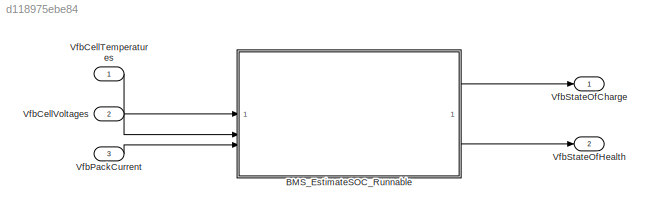
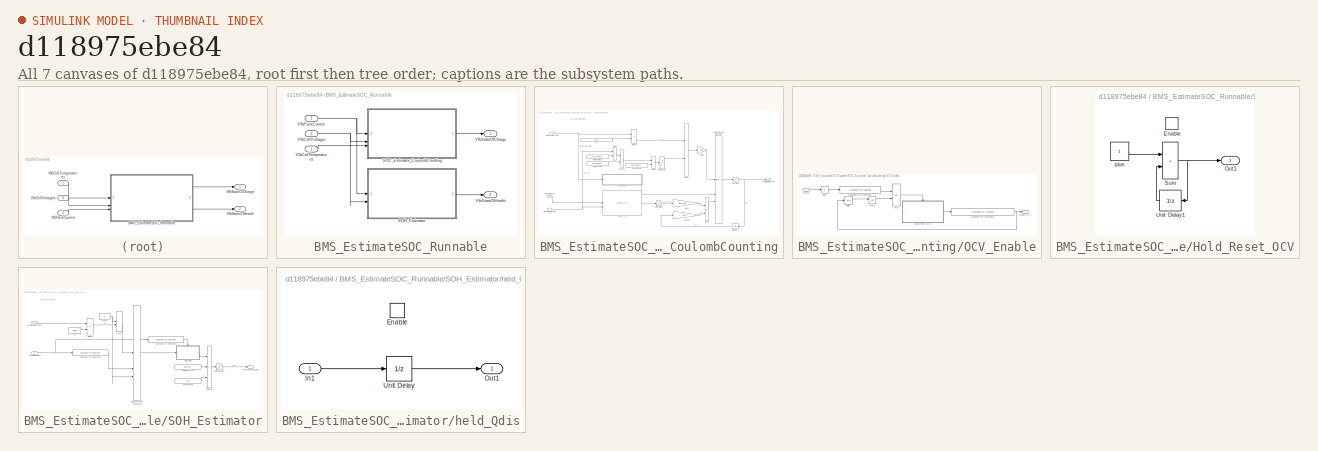
[diagram: thumbnail index - all 7 canvases of the model, root first then tree order]
MODEL slx_d118975ebe84
KIND model
CONFIG AbsTol = auto
CONFIG EnableMultiTasking = on
CONFIG FixedStep = auto
CONFIG MaxStep = auto
CONFIG MinStep = auto
CONFIG RelTol = 1e-3
CONFIG SampleTimeConstraint = Unconstrained
CONFIG SolverName = FixedStepDiscrete
CONFIG StartTime = 0.0
CONFIG StopTime = 10.0
WORKSPACE source: external: MAT-File  (data not in archive)
BLOCK [SubSystem] BMS_EstimateSOC_Runnable
  FunctionInterfaceSpec = Allow arguments (Optimized)
  PartitionName = BMS_EstimateSOC_Task
  Priority = 3
  RTWFcnNameOpts = Use subsystem name
  RTWSystemCode = Nonreusable function
  ScheduleAs = Periodic partition
  SystemSampleTime = Schedule.BMS_EstimateSOC_Task
  Tag = BMS_EstimateSOC_Task
  TreatAsAtomicUnit = on
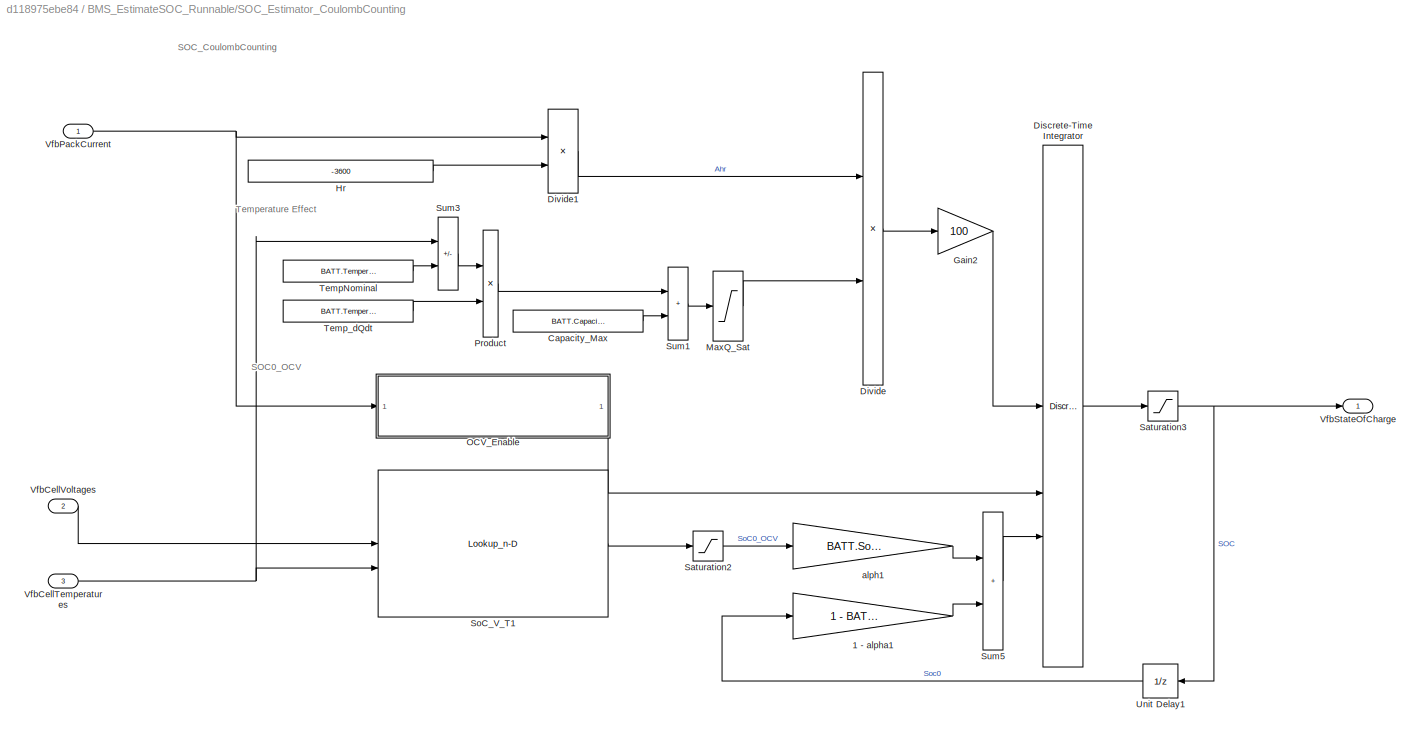
BLOCK [SubSystem] BMS_EstimateSOC_Runnable/SOC_Estimator_CoulombCounting
  FunctionInterfaceSpec = Allow arguments (Optimized)
  RTWSystemCode = Nonreusable function
  TreatAsAtomicUnit = on
BLOCK [Gain] BMS_EstimateSOC_Runnable/SOC_Estimator_CoulombCounting/1 - alpha1
  Gain = 1 - BATT.SoC.alpha
BLOCK [Constant] BMS_EstimateSOC_Runnable/SOC_Estimator_CoulombCounting/Capacity_Max
  Value = BATT.Capacity.Max
BLOCK [DiscreteIntegrator] BMS_EstimateSOC_Runnable/SOC_Estimator_CoulombCounting/Discrete-Time Integrator
  ExternalReset = rising
  ICPrevOutput = DiscIntNeverNeededParam
  ICPrevScaledInput = DiscIntNeverNeededParam
  InitialCondition = BATT.SOC.SoC0
  InitialConditionSource = external
  SampleTime = -1
BLOCK [Product] BMS_EstimateSOC_Runnable/SOC_Estimator_CoulombCounting/Divide
  Inputs = */
  NameLocation = top
  OutDataTypeStr = single
BLOCK [Product] BMS_EstimateSOC_Runnable/SOC_Estimator_CoulombCounting/Divide1
  Inputs = */
BLOCK [Gain] BMS_EstimateSOC_Runnable/SOC_Estimator_CoulombCounting/Gain2
  Gain = 100
  OutDataTypeStr = single
BLOCK [Constant] BMS_EstimateSOC_Runnable/SOC_Estimator_CoulombCounting/Hr
  OutDataTypeStr = single
  Value = -3600
BLOCK [Saturate] BMS_EstimateSOC_Runnable/SOC_Estimator_CoulombCounting/MaxQ_Sat
  LowerLimit = 0
  UpperLimit = BATT.Capacity.Max
BLOCK [SubSystem] BMS_EstimateSOC_Runnable/SOC_Estimator_CoulombCounting/OCV_Enable
BLOCK [Logic] BMS_EstimateSOC_Runnable/SOC_Estimator_CoulombCounting/OCV_Enable/AND
  AllPortsSameDT = off
  OutDataTypeStr = boolean
BLOCK [Abs] BMS_EstimateSOC_Runnable/SOC_Estimator_CoulombCounting/OCV_Enable/Abs1
  SaturateOnIntegerOverflow = off
BLOCK [Reference] BMS_EstimateSOC_Runnable/SOC_Estimator_CoulombCounting/OCV_Enable/Compare To Constant1  REF=simulink/Logic and Bit
Operations/Compare
To Constant
  SourceBlock = simulink/Logic and Bit\nOperations/Compare\nTo Constant
  SourceType = Compare To Constant
BLOCK [Reference] BMS_EstimateSOC_Runnable/SOC_Estimator_CoulombCounting/OCV_Enable/Compare To Constant2  REF=simulink/Logic and Bit
Operations/Compare
To Constant
  SourceBlock = simulink/Logic and Bit\nOperations/Compare\nTo Constant
  SourceType = Compare To Constant
BLOCK [SubSystem] BMS_EstimateSOC_Runnable/SOC_Estimator_CoulombCounting/OCV_Enable/Hold_Reset_OCV
BLOCK [EnablePort] BMS_EstimateSOC_Runnable/SOC_Estimator_CoulombCounting/OCV_Enable/Hold_Reset_OCV/Enable
  StatesWhenEnabling = reset
BLOCK [Outport] BMS_EstimateSOC_Runnable/SOC_Estimator_CoulombCounting/OCV_Enable/Hold_Reset_OCV/Out1
  InitialOutput = 0
  OutputWhenDisabled = reset
BLOCK [Sum] BMS_EstimateSOC_Runnable/SOC_Estimator_CoulombCounting/OCV_Enable/Hold_Reset_OCV/Sum
  IconShape = rectangular
BLOCK [UnitDelay] BMS_EstimateSOC_Runnable/SOC_Estimator_CoulombCounting/OCV_Enable/Hold_Reset_OCV/Unit Delay1
  HasFrameUpgradeWarning = on
  SampleTime = -1
BLOCK [Constant] BMS_EstimateSOC_Runnable/SOC_Estimator_CoulombCounting/OCV_Enable/Hold_Reset_OCV/plus
BLOCK [Inport] BMS_EstimateSOC_Runnable/SOC_Estimator_CoulombCounting/OCV_Enable/InCurr
BLOCK [Logic] BMS_EstimateSOC_Runnable/SOC_Estimator_CoulombCounting/OCV_Enable/NOT
  AllPortsSameDT = off
  Operator = NOT
  OutDataTypeStr = boolean
BLOCK [Outport] BMS_EstimateSOC_Runnable/SOC_Estimator_CoulombCounting/OCV_Enable/Reset_OCV
BLOCK [UnitDelay] BMS_EstimateSOC_Runnable/SOC_Estimator_CoulombCounting/OCV_Enable/delay
  HasFrameUpgradeWarning = on
  SampleTime = -1
BLOCK [Product] BMS_EstimateSOC_Runnable/SOC_Estimator_CoulombCounting/Product
BLOCK [Saturate] BMS_EstimateSOC_Runnable/SOC_Estimator_CoulombCounting/Saturation2
  LowerLimit = BATT.SoC.min
  OutDataTypeStr = single
  UpperLimit = BATT.SoC.max
BLOCK [Saturate] BMS_EstimateSOC_Runnable/SOC_Estimator_CoulombCounting/Saturation3
  LowerLimit = BATT.SoC.min
  OutDataTypeStr = single
  UpperLimit = BATT.SoC.max
BLOCK [Lookup_n-D] BMS_EstimateSOC_Runnable/SOC_Estimator_CoulombCounting/SoC_V_T1
  BreakpointsForDimension1 = BATT.Voltage.V_LUT
  BreakpointsForDimension2 = BATT.Temperature.T_LUT
  InputPortMap = u0,u1
  InternalRulePriority = Speed
  RndMeth = Simplest
  Table = BATT.SoC.TableData
BLOCK [Sum] BMS_EstimateSOC_Runnable/SOC_Estimator_CoulombCounting/Sum1
  IconShape = rectangular
BLOCK [Sum] BMS_EstimateSOC_Runnable/SOC_Estimator_CoulombCounting/Sum3
  IconShape = rectangular
  Inputs = +-
BLOCK [Sum] BMS_EstimateSOC_Runnable/SOC_Estimator_CoulombCounting/Sum5
  IconShape = rectangular
BLOCK [Constant] BMS_EstimateSOC_Runnable/SOC_Estimator_CoulombCounting/TempNominal
  Value = BATT.Temperature.Nominal
BLOCK [Constant] BMS_EstimateSOC_Runnable/SOC_Estimator_CoulombCounting/Temp_dQdt
  Value = BATT.Temperature.dQ_dt
BLOCK [UnitDelay] BMS_EstimateSOC_Runnable/SOC_Estimator_CoulombCounting/Unit Delay1
  HasFrameUpgradeWarning = on
  InitialCondition = BATT.SoC.SoC0 * ones(BATT.Package.Ns_Module, BATT.Package.NumModules)
  SampleTime = -1
BLOCK [Inport] BMS_EstimateSOC_Runnable/SOC_Estimator_CoulombCounting/VfbCellTemperatures
  Port = 3
BLOCK [Inport] BMS_EstimateSOC_Runnable/SOC_Estimator_CoulombCounting/VfbCellVoltages
  Port = 2
  PortDimensions = BATT.Package.NumModules
BLOCK [Inport] BMS_EstimateSOC_Runnable/SOC_Estimator_CoulombCounting/VfbPackCurrent
BLOCK [Outport] BMS_EstimateSOC_Runnable/SOC_Estimator_CoulombCounting/VfbStateOfCharge
BLOCK [Gain] BMS_EstimateSOC_Runnable/SOC_Estimator_CoulombCounting/alph1
  Gain = BATT.SoC.alpha
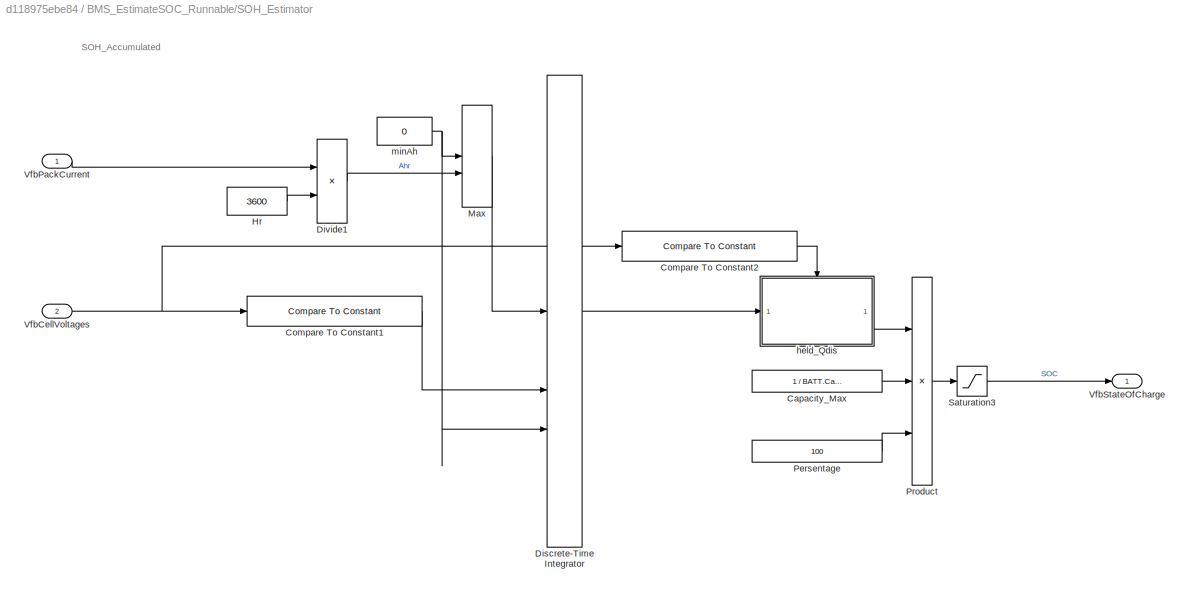
BLOCK [SubSystem] BMS_EstimateSOC_Runnable/SOH_Estimator
  FunctionInterfaceSpec = Allow arguments (Optimized)
  RTWSystemCode = Nonreusable function
  TreatAsAtomicUnit = on
BLOCK [Constant] BMS_EstimateSOC_Runnable/SOH_Estimator/Capacity_Max
  Value = 1 / BATT.Capacity.Max
BLOCK [Reference] BMS_EstimateSOC_Runnable/SOH_Estimator/Compare To Constant1  REF=simulink/Logic and Bit
Operations/Compare
To Constant
  SourceBlock = simulink/Logic and Bit\nOperations/Compare\nTo Constant
  SourceType = Compare To Constant
BLOCK [Reference] BMS_EstimateSOC_Runnable/SOH_Estimator/Compare To Constant2  REF=simulink/Logic and Bit
Operations/Compare
To Constant
  SourceBlock = simulink/Logic and Bit\nOperations/Compare\nTo Constant
  SourceType = Compare To Constant
BLOCK [DiscreteIntegrator] BMS_EstimateSOC_Runnable/SOH_Estimator/Discrete-Time Integrator
  ExternalReset = rising
  ICPrevOutput = DiscIntNeverNeededParam
  ICPrevScaledInput = DiscIntNeverNeededParam
  InitialCondition = BATT.SOC.SoC0
  InitialConditionSource = external
  SampleTime = -1
BLOCK [Product] BMS_EstimateSOC_Runnable/SOH_Estimator/Divide1
  Inputs = */
BLOCK [Constant] BMS_EstimateSOC_Runnable/SOH_Estimator/Hr
  OutDataTypeStr = single
  Value = 3600
BLOCK [MinMax] BMS_EstimateSOC_Runnable/SOH_Estimator/Max
  Function = max
  Inputs = 2
BLOCK [Constant] BMS_EstimateSOC_Runnable/SOH_Estimator/Persentage
  Value = 100
BLOCK [Product] BMS_EstimateSOC_Runnable/SOH_Estimator/Product
  Inputs = 3
BLOCK [Saturate] BMS_EstimateSOC_Runnable/SOH_Estimator/Saturation3
  LowerLimit = BATT.SoC.min
  OutDataTypeStr = single
  UpperLimit = BATT.SoC.max
BLOCK [Inport] BMS_EstimateSOC_Runnable/SOH_Estimator/VfbCellVoltages
  Port = 2
  PortDimensions = BATT.Package.NumModules
BLOCK [Inport] BMS_EstimateSOC_Runnable/SOH_Estimator/VfbPackCurrent
BLOCK [Outport] BMS_EstimateSOC_Runnable/SOH_Estimator/VfbStateOfCharge
BLOCK [SubSystem] BMS_EstimateSOC_Runnable/SOH_Estimator/held_Qdis
  TreatAsAtomicUnit = on
BLOCK [EnablePort] BMS_EstimateSOC_Runnable/SOH_Estimator/held_Qdis/Enable
BLOCK [Inport] BMS_EstimateSOC_Runnable/SOH_Estimator/held_Qdis/In1
BLOCK [Outport] BMS_EstimateSOC_Runnable/SOH_Estimator/held_Qdis/Out1
BLOCK [UnitDelay] BMS_EstimateSOC_Runnable/SOH_Estimator/held_Qdis/Unit Delay
  HasFrameUpgradeWarning = on
  InitialCondition = BATT.Capacity.Max
  SampleTime = -1
BLOCK [Constant] BMS_EstimateSOC_Runnable/SOH_Estimator/minAh
  OutDataTypeStr = single
  Value = 0
BLOCK [Inport] BMS_EstimateSOC_Runnable/VfbCellTemperatures
  PortDimensions = BATT.Package.NumModules
BLOCK [Inport] BMS_EstimateSOC_Runnable/VfbCellVoltages
  Port = 2
  PortDimensions = BATT.Package.NumModules
BLOCK [Inport] BMS_EstimateSOC_Runnable/VfbPackCurrent
  Port = 3
BLOCK [Outport] BMS_EstimateSOC_Runnable/VfbStateOfCharge
BLOCK [Outport] BMS_EstimateSOC_Runnable/VfbStateOfHealth
  Port = 2
BLOCK [Inport] VfbCellTemperatures
  OutDataTypeStr = single
  Unit = °C
BLOCK [Inport] VfbCellVoltages
  OutDataTypeStr = single
  Port = 2
  Unit = V
BLOCK [Inport] VfbPackCurrent
  OutDataTypeStr = single
  Port = 3
  PortDimensions = 1
  Unit = A
BLOCK [Outport] VfbStateOfCharge
  OutDataTypeStr = single
BLOCK [Outport] VfbStateOfHealth
  OutDataTypeStr = single
  Port = 2
ANNOTATION BMS_EstimateSOC_Runnable/SOC_Estimator_CoulombCounting: SOC0_OCV
ANNOTATION BMS_EstimateSOC_Runnable/SOC_Estimator_CoulombCounting: SOC_CoulombCounting
ANNOTATION BMS_EstimateSOC_Runnable/SOC_Estimator_CoulombCounting: Temperature Effect
ANNOTATION BMS_EstimateSOC_Runnable/SOH_Estimator: SOH_Accumulated
LINE BMS_EstimateSOC_Runnable/SOC_Estimator_CoulombCounting/1 - alpha1:1 -> BMS_EstimateSOC_Runnable/SOC_Estimator_CoulombCounting/Sum5:2
LINE BMS_EstimateSOC_Runnable/SOC_Estimator_CoulombCounting/Capacity_Max:1 -> BMS_EstimateSOC_Runnable/SOC_Estimator_CoulombCounting/Sum1:2
LINE BMS_EstimateSOC_Runnable/SOC_Estimator_CoulombCounting/Discrete-Time Integrator:1 -> BMS_EstimateSOC_Runnable/SOC_Estimator_CoulombCounting/Saturation3:1
LINE BMS_EstimateSOC_Runnable/SOC_Estimator_CoulombCounting/Divide1:1 -> BMS_EstimateSOC_Runnable/SOC_Estimator_CoulombCounting/Divide:1
LINE BMS_EstimateSOC_Runnable/SOC_Estimator_CoulombCounting/Divide:1 -> BMS_EstimateSOC_Runnable/SOC_Estimator_CoulombCounting/Gain2:1
LINE BMS_EstimateSOC_Runnable/SOC_Estimator_CoulombCounting/Gain2:1 -> BMS_EstimateSOC_Runnable/SOC_Estimator_CoulombCounting/Discrete-Time Integrator:1
LINE BMS_EstimateSOC_Runnable/SOC_Estimator_CoulombCounting/Hr:1 -> BMS_EstimateSOC_Runnable/SOC_Estimator_CoulombCounting/Divide1:2
LINE BMS_EstimateSOC_Runnable/SOC_Estimator_CoulombCounting/MaxQ_Sat:1 -> BMS_EstimateSOC_Runnable/SOC_Estimator_CoulombCounting/Divide:2
LINE BMS_EstimateSOC_Runnable/SOC_Estimator_CoulombCounting/OCV_Enable/AND:1 -> BMS_EstimateSOC_Runnable/SOC_Estimator_CoulombCounting/OCV_Enable/Hold_Reset_OCV:enable
LINE BMS_EstimateSOC_Runnable/SOC_Estimator_CoulombCounting/OCV_Enable/Abs1:1 -> BMS_EstimateSOC_Runnable/SOC_Estimator_CoulombCounting/OCV_Enable/Compare To Constant1:1
LINE BMS_EstimateSOC_Runnable/SOC_Estimator_CoulombCounting/OCV_Enable/Compare To Constant1:1 -> BMS_EstimateSOC_Runnable/SOC_Estimator_CoulombCounting/OCV_Enable/AND:1
NET BMS_EstimateSOC_Runnable/SOC_Estimator_CoulombCounting/OCV_Enable/Compare To Constant2:1 -> BMS_EstimateSOC_Runnable/SOC_Estimator_CoulombCounting/OCV_Enable/Reset_OCV:1, BMS_EstimateSOC_Runnable/SOC_Estimator_CoulombCounting/OCV_Enable/delay:1
NET BMS_EstimateSOC_Runnable/SOC_Estimator_CoulombCounting/OCV_Enable/Hold_Reset_OCV/Sum:1 -> BMS_EstimateSOC_Runnable/SOC_Estimator_CoulombCounting/OCV_Enable/Hold_Reset_OCV/Out1:1, BMS_EstimateSOC_Runnable/SOC_Estimator_CoulombCounting/OCV_Enable/Hold_Reset_OCV/Unit Delay1:1
LINE BMS_EstimateSOC_Runnable/SOC_Estimator_CoulombCounting/OCV_Enable/Hold_Reset_OCV/Unit Delay1:1 -> BMS_EstimateSOC_Runnable/SOC_Estimator_CoulombCounting/OCV_Enable/Hold_Reset_OCV/Sum:2
LINE BMS_EstimateSOC_Runnable/SOC_Estimator_CoulombCounting/OCV_Enable/Hold_Reset_OCV/plus:1 -> BMS_EstimateSOC_Runnable/SOC_Estimator_CoulombCounting/OCV_Enable/Hold_Reset_OCV/Sum:1
LINE BMS_EstimateSOC_Runnable/SOC_Estimator_CoulombCounting/OCV_Enable/Hold_Reset_OCV:1 -> BMS_EstimateSOC_Runnable/SOC_Estimator_CoulombCounting/OCV_Enable/Compare To Constant2:1
LINE BMS_EstimateSOC_Runnable/SOC_Estimator_CoulombCounting/OCV_Enable/InCurr:1 -> BMS_EstimateSOC_Runnable/SOC_Estimator_CoulombCounting/OCV_Enable/Abs1:1
LINE BMS_EstimateSOC_Runnable/SOC_Estimator_CoulombCounting/OCV_Enable/NOT:1 -> BMS_EstimateSOC_Runnable/SOC_Estimator_CoulombCounting/OCV_Enable/AND:2
LINE BMS_EstimateSOC_Runnable/SOC_Estimator_CoulombCounting/OCV_Enable/delay:1 -> BMS_EstimateSOC_Runnable/SOC_Estimator_CoulombCounting/OCV_Enable/NOT:1
LINE BMS_EstimateSOC_Runnable/SOC_Estimator_CoulombCounting/OCV_Enable:1 -> BMS_EstimateSOC_Runnable/SOC_Estimator_CoulombCounting/Discrete-Time Integrator:2
LINE BMS_EstimateSOC_Runnable/SOC_Estimator_CoulombCounting/Product:1 -> BMS_EstimateSOC_Runnable/SOC_Estimator_CoulombCounting/Sum1:1
LINE BMS_EstimateSOC_Runnable/SOC_Estimator_CoulombCounting/Saturation2:1 -> BMS_EstimateSOC_Runnable/SOC_Estimator_CoulombCounting/alph1:1
NET BMS_EstimateSOC_Runnable/SOC_Estimator_CoulombCounting/Saturation3:1 -> BMS_EstimateSOC_Runnable/SOC_Estimator_CoulombCounting/Unit Delay1:1, BMS_EstimateSOC_Runnable/SOC_Estimator_CoulombCounting/VfbStateOfCharge:1
LINE BMS_EstimateSOC_Runnable/SOC_Estimator_CoulombCounting/SoC_V_T1:1 -> BMS_EstimateSOC_Runnable/SOC_Estimator_CoulombCounting/Saturation2:1
LINE BMS_EstimateSOC_Runnable/SOC_Estimator_CoulombCounting/Sum1:1 -> BMS_EstimateSOC_Runnable/SOC_Estimator_CoulombCounting/MaxQ_Sat:1
LINE BMS_EstimateSOC_Runnable/SOC_Estimator_CoulombCounting/Sum3:1 -> BMS_EstimateSOC_Runnable/SOC_Estimator_CoulombCounting/Product:1
LINE BMS_EstimateSOC_Runnable/SOC_Estimator_CoulombCounting/Sum5:1 -> BMS_EstimateSOC_Runnable/SOC_Estimator_CoulombCounting/Discrete-Time Integrator:3
LINE BMS_EstimateSOC_Runnable/SOC_Estimator_CoulombCounting/TempNominal:1 -> BMS_EstimateSOC_Runnable/SOC_Estimator_CoulombCounting/Sum3:2
LINE BMS_EstimateSOC_Runnable/SOC_Estimator_CoulombCounting/Temp_dQdt:1 -> BMS_EstimateSOC_Runnable/SOC_Estimator_CoulombCounting/Product:2
LINE BMS_EstimateSOC_Runnable/SOC_Estimator_CoulombCounting/Unit Delay1:1 -> BMS_EstimateSOC_Runnable/SOC_Estimator_CoulombCounting/1 - alpha1:1
NET BMS_EstimateSOC_Runnable/SOC_Estimator_CoulombCounting/VfbCellTemperatures:1 -> BMS_EstimateSOC_Runnable/SOC_Estimator_CoulombCounting/SoC_V_T1:2, BMS_EstimateSOC_Runnable/SOC_Estimator_CoulombCounting/Sum3:1
LINE BMS_EstimateSOC_Runnable/SOC_Estimator_CoulombCounting/VfbCellVoltages:1 -> BMS_EstimateSOC_Runnable/SOC_Estimator_CoulombCounting/SoC_V_T1:1
NET BMS_EstimateSOC_Runnable/SOC_Estimator_CoulombCounting/VfbPackCurrent:1 -> BMS_EstimateSOC_Runnable/SOC_Estimator_CoulombCounting/Divide1:1, BMS_EstimateSOC_Runnable/SOC_Estimator_CoulombCounting/OCV_Enable:1
LINE BMS_EstimateSOC_Runnable/SOC_Estimator_CoulombCounting/alph1:1 -> BMS_EstimateSOC_Runnable/SOC_Estimator_CoulombCounting/Sum5:1
LINE BMS_EstimateSOC_Runnable/SOC_Estimator_CoulombCounting:1 -> BMS_EstimateSOC_Runnable/VfbStateOfCharge:1
LINE BMS_EstimateSOC_Runnable/SOH_Estimator/Capacity_Max:1 -> BMS_EstimateSOC_Runnable/SOH_Estimator/Product:2
LINE BMS_EstimateSOC_Runnable/SOH_Estimator/Compare To Constant1:1 -> BMS_EstimateSOC_Runnable/SOH_Estimator/Discrete-Time Integrator:2
LINE BMS_EstimateSOC_Runnable/SOH_Estimator/Compare To Constant2:1 -> BMS_EstimateSOC_Runnable/SOH_Estimator/held_Qdis:enable
LINE BMS_EstimateSOC_Runnable/SOH_Estimator/Discrete-Time Integrator:1 -> BMS_EstimateSOC_Runnable/SOH_Estimator/held_Qdis:1
LINE BMS_EstimateSOC_Runnable/SOH_Estimator/Divide1:1 -> BMS_EstimateSOC_Runnable/SOH_Estimator/Max:2
LINE BMS_EstimateSOC_Runnable/SOH_Estimator/Hr:1 -> BMS_EstimateSOC_Runnable/SOH_Estimator/Divide1:2
LINE BMS_EstimateSOC_Runnable/SOH_Estimator/Max:1 -> BMS_EstimateSOC_Runnable/SOH_Estimator/Discrete-Time Integrator:1
LINE BMS_EstimateSOC_Runnable/SOH_Estimator/Persentage:1 -> BMS_EstimateSOC_Runnable/SOH_Estimator/Product:3
LINE BMS_EstimateSOC_Runnable/SOH_Estimator/Product:1 -> BMS_EstimateSOC_Runnable/SOH_Estimator/Saturation3:1
LINE BMS_EstimateSOC_Runnable/SOH_Estimator/Saturation3:1 -> BMS_EstimateSOC_Runnable/SOH_Estimator/VfbStateOfCharge:1
NET BMS_EstimateSOC_Runnable/SOH_Estimator/VfbCellVoltages:1 -> BMS_EstimateSOC_Runnable/SOH_Estimator/Compare To Constant1:1, BMS_EstimateSOC_Runnable/SOH_Estimator/Compare To Constant2:1
LINE BMS_EstimateSOC_Runnable/SOH_Estimator/VfbPackCurrent:1 -> BMS_EstimateSOC_Runnable/SOH_Estimator/Divide1:1
LINE BMS_EstimateSOC_Runnable/SOH_Estimator/held_Qdis/In1:1 -> BMS_EstimateSOC_Runnable/SOH_Estimator/held_Qdis/Unit Delay:1
LINE BMS_EstimateSOC_Runnable/SOH_Estimator/held_Qdis/Unit Delay:1 -> BMS_EstimateSOC_Runnable/SOH_Estimator/held_Qdis/Out1:1
LINE BMS_EstimateSOC_Runnable/SOH_Estimator/held_Qdis:1 -> BMS_EstimateSOC_Runnable/SOH_Estimator/Product:1
NET BMS_EstimateSOC_Runnable/SOH_Estimator/minAh:1 -> BMS_EstimateSOC_Runnable/SOH_Estimator/Discrete-Time Integrator:3, BMS_EstimateSOC_Runnable/SOH_Estimator/Max:1
LINE BMS_EstimateSOC_Runnable/SOH_Estimator:1 -> BMS_EstimateSOC_Runnable/VfbStateOfHealth:1
LINE BMS_EstimateSOC_Runnable/VfbCellTemperatures:1 -> BMS_EstimateSOC_Runnable/SOC_Estimator_CoulombCounting:3
NET BMS_EstimateSOC_Runnable/VfbCellVoltages:1 -> BMS_EstimateSOC_Runnable/SOC_Estimator_CoulombCounting:2, BMS_EstimateSOC_Runnable/SOH_Estimator:2
NET BMS_EstimateSOC_Runnable/VfbPackCurrent:1 -> BMS_EstimateSOC_Runnable/SOC_Estimator_CoulombCounting:1, BMS_EstimateSOC_Runnable/SOH_Estimator:1
LINE BMS_EstimateSOC_Runnable:1 -> VfbStateOfCharge:1
LINE BMS_EstimateSOC_Runnable:2 -> VfbStateOfHealth:1
LINE VfbCellTemperatures:1 -> BMS_EstimateSOC_Runnable:1
LINE VfbCellVoltages:1 -> BMS_EstimateSOC_Runnable:2
LINE VfbPackCurrent:1 -> BMS_EstimateSOC_Runnable:3
note: NET lines group one-source signal fan-out (src -> all destinations, sorted); 1:1 wires keep LINE
